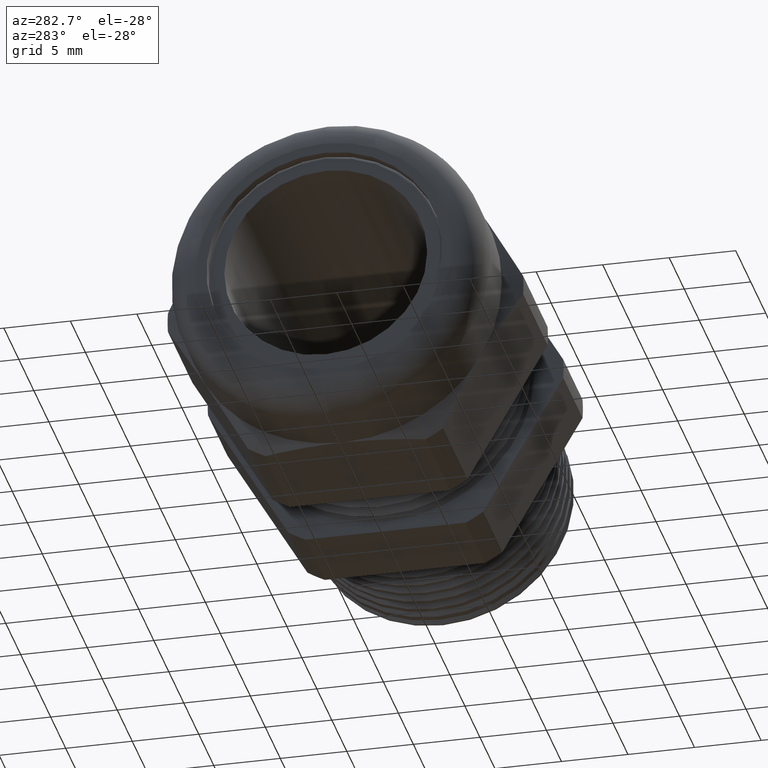
[diagram: clean part render]
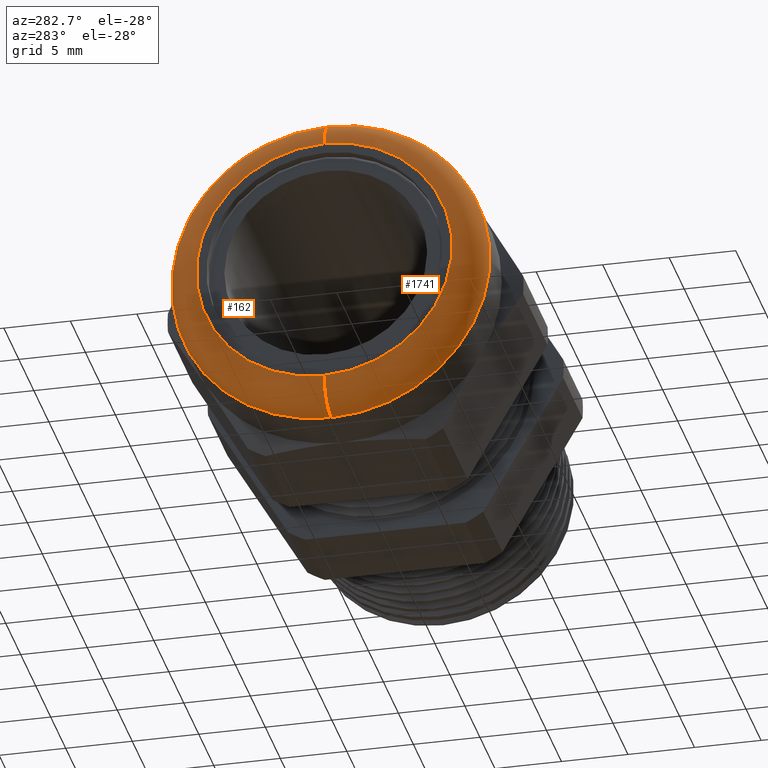
[diagram: same view with one multi-face feature highlighted, each face labeled with its STEP entity id]
A machine part, auxiliary view. The highlighted faces form ONE feature: a constant-radius fillet chain: 2 tangent blend faces with common blend radius 2.3216 mm. The faces share edges in the B-rep.
Their STEP definitions:
[1] entity #1741 (Torus):
#157 = VERTEX_POINT ( 'NONE', #818 ) ;
#158 = VERTEX_POINT ( 'NONE', #817 ) ;
#164 = EDGE_CURVE ( 'NONE', #157, #247, #865, .T. ) ;
#226 = VERTEX_POINT ( 'NONE', #977 ) ;
#229 = EDGE_CURVE ( 'NONE', #158, #226, #970, .T. ) ;
#231 = DIRECTION ( 'NONE',  ( 0.0000000000000000000, 0.0000000000000000000, -1.000000000000000000 ) ) ;
#247 = VERTEX_POINT ( 'NONE', #1010 ) ;
#817 = CARTESIAN_POINT ( 'NONE',  ( -1.060000000000000100, 0.0000000000000000000, -0.3785999999999997700 ) ) ;
#818 = CARTESIAN_POINT ( 'NONE',  ( -1.060000000000000100, 5.196176368782216900E-017, 0.3785999999999997700 ) ) ;
#861 = DIRECTION ( 'NONE',  ( 0.0000000000000000000, 1.224646799147353000E-016, 1.000000000000000000 ) ) ;
#862 = DIRECTION ( 'NONE',  ( 0.0000000000000000000, 1.000000000000000000, -1.224646799147353200E-016 ) ) ;
#863 = CARTESIAN_POINT ( 'NONE',  ( -0.9686000000000000200, 4.636512781571876600E-017, 0.3785999999999997700 ) ) ;
#864 = AXIS2_PLACEMENT_3D ( 'NONE', #863, #862, #861 ) ;
#865 = CIRCLE ( 'NONE', #864, 0.09140000000000000900 ) ;
#966 = DIRECTION ( 'NONE',  ( 0.0000000000000000000, 0.0000000000000000000, -1.000000000000000000 ) ) ;
#967 = DIRECTION ( 'NONE',  ( 0.0000000000000000000, -1.000000000000000000, 0.0000000000000000000 ) ) ;
#968 = CARTESIAN_POINT ( 'NONE',  ( -0.9686000000000000200, 0.0000000000000000000, -0.3785999999999997700 ) ) ;
#969 = AXIS2_PLACEMENT_3D ( 'NONE', #968, #967, #966 ) ;
#970 = CIRCLE ( 'NONE', #969, 0.09140000000000000900 ) ;
#977 = CARTESIAN_POINT ( 'NONE',  ( -0.9686000000000000200, 5.755839955992557200E-017, -0.4699999999999997500 ) ) ;
#1010 = CARTESIAN_POINT ( 'NONE',  ( -0.9686000000000000200, 0.0000000000000000000, 0.4699999999999997500 ) ) ;
#1693 = EDGE_CURVE ( 'NONE', #247, #226, #2783, .T. ) ;
#1738 = ORIENTED_EDGE ( 'NONE', *, *, #229, .T. ) ;
#1739 = ORIENTED_EDGE ( 'NONE', *, *, #1693, .F. ) ;
#1741 = ADVANCED_FACE ( 'NONE', ( #2847 ), #2846, .T. ) ;
#1742 = ORIENTED_EDGE ( 'NONE', *, *, #164, .F. ) ;
#1747 = ORIENTED_EDGE ( 'NONE', *, *, #3708, .F. ) ;
#1754 = EDGE_LOOP ( 'NONE', ( #1742, #1747, #1738, #1739 ) ) ;
#2779 = DIRECTION ( 'NONE',  ( 0.0000000000000000000, 0.0000000000000000000, -1.000000000000000000 ) ) ;
#2780 = DIRECTION ( 'NONE',  ( 1.000000000000000000, 0.0000000000000000000, 0.0000000000000000000 ) ) ;
#2781 = CARTESIAN_POINT ( 'NONE',  ( -0.9686000000000000200, 0.0000000000000000000, 0.0000000000000000000 ) ) ;
#2782 = AXIS2_PLACEMENT_3D ( 'NONE', #2781, #2780, #2779 ) ;
#2783 = CIRCLE ( 'NONE', #2782, 0.4699999999999997500 ) ;
#2840 = DIRECTION ( 'NONE',  ( 1.000000000000000000, 0.0000000000000000000, 0.0000000000000000000 ) ) ;
#2841 = CARTESIAN_POINT ( 'NONE',  ( -0.9686000000000000200, 0.0000000000000000000, 0.0000000000000000000 ) ) ;
#2842 = AXIS2_PLACEMENT_3D ( 'NONE', #2841, #2840, #231 ) ;
#2846 = TOROIDAL_SURFACE ( 'NONE', #2842, 0.3785999999999997700, 0.09139999999999999500 ) ;
#2847 = FACE_OUTER_BOUND ( 'NONE', #1754, .T. ) ;
#3313 = DIRECTION ( 'NONE',  ( 0.0000000000000000000, 0.0000000000000000000, -1.000000000000000000 ) ) ;
#3314 = DIRECTION ( 'NONE',  ( -1.000000000000000000, 0.0000000000000000000, 0.0000000000000000000 ) ) ;
#3315 = CARTESIAN_POINT ( 'NONE',  ( -1.060000000000000100, 0.0000000000000000000, 0.0000000000000000000 ) ) ;
#3316 = AXIS2_PLACEMENT_3D ( 'NONE', #3315, #3314, #3313 ) ;
#3317 = CIRCLE ( 'NONE', #3316, 0.3785999999999997700 ) ;
#3708 = EDGE_CURVE ( 'NONE', #158, #157, #3317, .T. ) ;
[2] entity #162 (Torus):
#156 = ORIENTED_EDGE ( 'NONE', *, *, #163, .F. ) ;
#157 = VERTEX_POINT ( 'NONE', #818 ) ;
#158 = VERTEX_POINT ( 'NONE', #817 ) ;
#160 = EDGE_LOOP ( 'NONE', ( #156, #161, #243, #228 ) ) ;
#161 = ORIENTED_EDGE ( 'NONE', *, *, #164, .T. ) ;
#162 = ADVANCED_FACE ( 'NONE', ( #811 ), #810, .T. ) ;
#163 = EDGE_CURVE ( 'NONE', #157, #158, #805, .T. ) ;
#164 = EDGE_CURVE ( 'NONE', #157, #247, #865, .T. ) ;
#226 = VERTEX_POINT ( 'NONE', #977 ) ;
#228 = ORIENTED_EDGE ( 'NONE', *, *, #229, .F. ) ;
#229 = EDGE_CURVE ( 'NONE', #158, #226, #970, .T. ) ;
#243 = ORIENTED_EDGE ( 'NONE', *, *, #257, .F. ) ;
#247 = VERTEX_POINT ( 'NONE', #1010 ) ;
#257 = EDGE_CURVE ( 'NONE', #226, #247, #996, .T. ) ;
#801 = DIRECTION ( 'NONE',  ( 0.0000000000000000000, 0.0000000000000000000, -1.000000000000000000 ) ) ;
#802 = DIRECTION ( 'NONE',  ( -1.000000000000000000, 0.0000000000000000000, 0.0000000000000000000 ) ) ;
#803 = CARTESIAN_POINT ( 'NONE',  ( -1.060000000000000100, 0.0000000000000000000, 0.0000000000000000000 ) ) ;
#804 = AXIS2_PLACEMENT_3D ( 'NONE', #803, #802, #801 ) ;
#805 = CIRCLE ( 'NONE', #804, 0.3785999999999997700 ) ;
#806 = DIRECTION ( 'NONE',  ( 0.0000000000000000000, 0.0000000000000000000, -1.000000000000000000 ) ) ;
#807 = DIRECTION ( 'NONE',  ( 1.000000000000000000, 0.0000000000000000000, 0.0000000000000000000 ) ) ;
#808 = CARTESIAN_POINT ( 'NONE',  ( -0.9686000000000000200, 0.0000000000000000000, 0.0000000000000000000 ) ) ;
#809 = AXIS2_PLACEMENT_3D ( 'NONE', #808, #807, #806 ) ;
#810 = TOROIDAL_SURFACE ( 'NONE', #809, 0.3785999999999997700, 0.09139999999999999500 ) ;
#811 = FACE_OUTER_BOUND ( 'NONE', #160, .T. ) ;
#817 = CARTESIAN_POINT ( 'NONE',  ( -1.060000000000000100, 0.0000000000000000000, -0.3785999999999997700 ) ) ;
#818 = CARTESIAN_POINT ( 'NONE',  ( -1.060000000000000100, 5.196176368782216900E-017, 0.3785999999999997700 ) ) ;
#861 = DIRECTION ( 'NONE',  ( 0.0000000000000000000, 1.224646799147353000E-016, 1.000000000000000000 ) ) ;
#862 = DIRECTION ( 'NONE',  ( 0.0000000000000000000, 1.000000000000000000, -1.224646799147353200E-016 ) ) ;
#863 = CARTESIAN_POINT ( 'NONE',  ( -0.9686000000000000200, 4.636512781571876600E-017, 0.3785999999999997700 ) ) ;
#864 = AXIS2_PLACEMENT_3D ( 'NONE', #863, #862, #861 ) ;
#865 = CIRCLE ( 'NONE', #864, 0.09140000000000000900 ) ;
#966 = DIRECTION ( 'NONE',  ( 0.0000000000000000000, 0.0000000000000000000, -1.000000000000000000 ) ) ;
#967 = DIRECTION ( 'NONE',  ( 0.0000000000000000000, -1.000000000000000000, 0.0000000000000000000 ) ) ;
#968 = CARTESIAN_POINT ( 'NONE',  ( -0.9686000000000000200, 0.0000000000000000000, -0.3785999999999997700 ) ) ;
#969 = AXIS2_PLACEMENT_3D ( 'NONE', #968, #967, #966 ) ;
#970 = CIRCLE ( 'NONE', #969, 0.09140000000000000900 ) ;
#977 = CARTESIAN_POINT ( 'NONE',  ( -0.9686000000000000200, 5.755839955992557200E-017, -0.4699999999999997500 ) ) ;
#992 = DIRECTION ( 'NONE',  ( 0.0000000000000000000, 0.0000000000000000000, -1.000000000000000000 ) ) ;
#993 = DIRECTION ( 'NONE',  ( 1.000000000000000000, 0.0000000000000000000, 0.0000000000000000000 ) ) ;
#994 = CARTESIAN_POINT ( 'NONE',  ( -0.9686000000000000200, 0.0000000000000000000, 0.0000000000000000000 ) ) ;
#995 = AXIS2_PLACEMENT_3D ( 'NONE', #994, #993, #992 ) ;
#996 = CIRCLE ( 'NONE', #995, 0.4699999999999997500 ) ;
#1010 = CARTESIAN_POINT ( 'NONE',  ( -0.9686000000000000200, 0.0000000000000000000, 0.4699999999999997500 ) ) ;